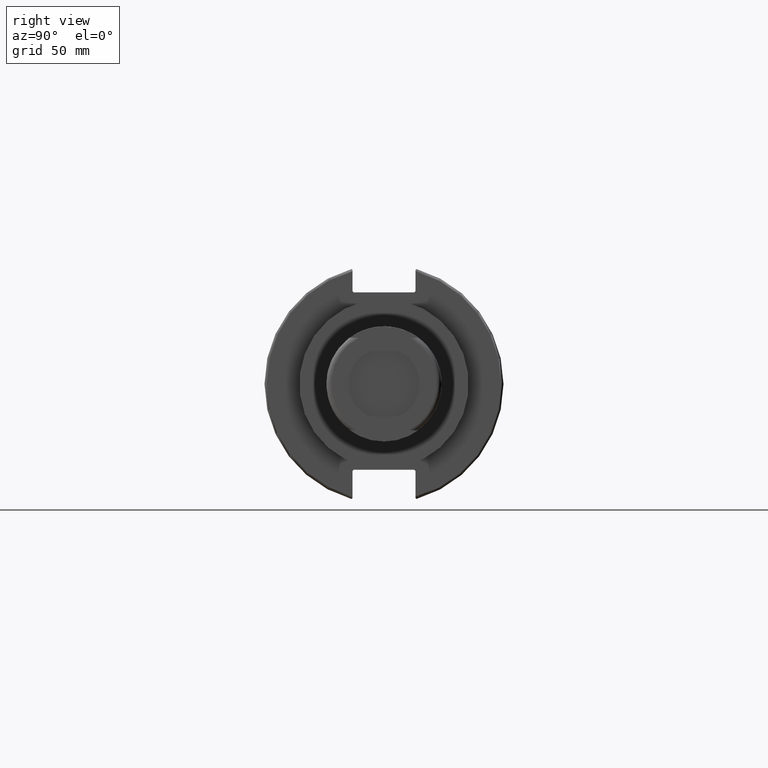
[diagram: clean part render]
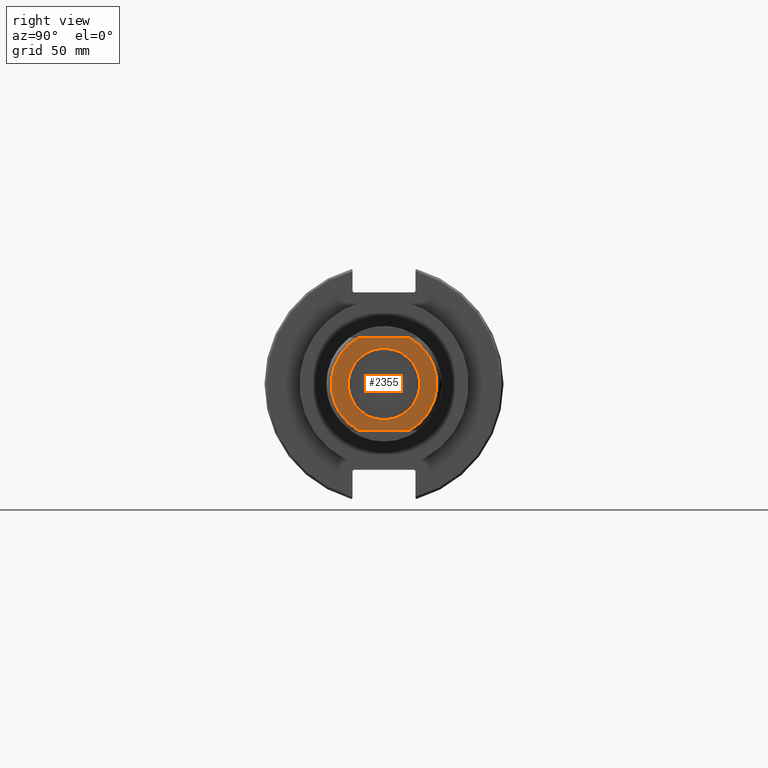
[diagram: same view with one face highlighted and labeled with its STEP entity id]
A machine part, right view. The second image highlights one B-rep face of the part: STEP entity #2355.
In plain terms, the highlighted planar face has unit normal (1, 0, 0).
Its self-contained STEP definition (entity closure, byte-faithful):
#568=FACE_BOUND('',#960,.T.);
#669=CIRCLE('',#2804,21.75);
#670=CIRCLE('',#2806,21.75);
#674=CIRCLE('',#2815,14.732);
#833=FACE_OUTER_BOUND('',#959,.T.);
#959=EDGE_LOOP('',(#2180,#2181,#2182,#2183));
#960=EDGE_LOOP('',(#2184));
#1082=LINE('',#4544,#1212);
#1089=LINE('',#4607,#1219);
#1212=VECTOR('',#3462,10.);
#1219=VECTOR('',#3497,10.);
#1379=VERTEX_POINT('',#4531);
#1381=VERTEX_POINT('',#4543);
#1392=VERTEX_POINT('',#4581);
#1393=VERTEX_POINT('',#4594);
#1396=VERTEX_POINT('',#4618);
#1635=EDGE_CURVE('',#1381,#1379,#1082,.T.);
#1650=EDGE_CURVE('',#1381,#1392,#669,.T.);
#1653=EDGE_CURVE('',#1393,#1379,#670,.T.);
#1654=EDGE_CURVE('',#1393,#1392,#1089,.T.);
#1659=EDGE_CURVE('',#1396,#1396,#674,.T.);
#2180=ORIENTED_EDGE('',*,*,#1635,.T.);
#2181=ORIENTED_EDGE('',*,*,#1653,.F.);
#2182=ORIENTED_EDGE('',*,*,#1654,.T.);
#2183=ORIENTED_EDGE('',*,*,#1650,.F.);
#2184=ORIENTED_EDGE('',*,*,#1659,.T.);
#2246=PLANE('',#2814);
#2355=ADVANCED_FACE('',(#833,#568),#2246,.T.);
#2804=AXIS2_PLACEMENT_3D('',#4582,#3489,#3490);
#2806=AXIS2_PLACEMENT_3D('',#4605,#3493,#3494);
#2814=AXIS2_PLACEMENT_3D('',#4617,#3511,#3512);
#2815=AXIS2_PLACEMENT_3D('',#4619,#3513,#3514);
#3462=DIRECTION('',(0.,1.,-1.22464679914735E-16));
#3489=DIRECTION('center_axis',(-1.,0.,0.));
#3490=DIRECTION('ref_axis',(0.,-1.,1.83697019872103E-16));
#3493=DIRECTION('center_axis',(-1.,0.,0.));
#3494=DIRECTION('ref_axis',(0.,-1.,1.83697019872103E-16));
#3497=DIRECTION('',(0.,-1.,0.));
#3511=DIRECTION('center_axis',(1.,0.,0.));
#3512=DIRECTION('ref_axis',(0.,0.,-1.));
#3513=DIRECTION('center_axis',(-1.,0.,0.));
#3514=DIRECTION('ref_axis',(0.,0.,-1.));
#4531=CARTESIAN_POINT('',(31.75,10.4957134107215,-19.05));
#4543=CARTESIAN_POINT('',(31.75,-10.4957134107215,-19.05));
#4544=CARTESIAN_POINT('',(31.75,-8.75,-19.05));
#4581=CARTESIAN_POINT('',(31.75,-10.4957134107215,19.05));
#4582=CARTESIAN_POINT('Origin',(31.75,0.,0.));
#4594=CARTESIAN_POINT('',(31.75,10.4957134107215,19.05));
#4605=CARTESIAN_POINT('Origin',(31.75,0.,0.));
#4607=CARTESIAN_POINT('',(31.75,8.75,19.05));
#4617=CARTESIAN_POINT('Origin',(31.75,2.31368500315101E-15,0.));
#4618=CARTESIAN_POINT('',(31.75,-1.80414966450388E-15,14.732));
#4619=CARTESIAN_POINT('Origin',(31.75,0.,0.));